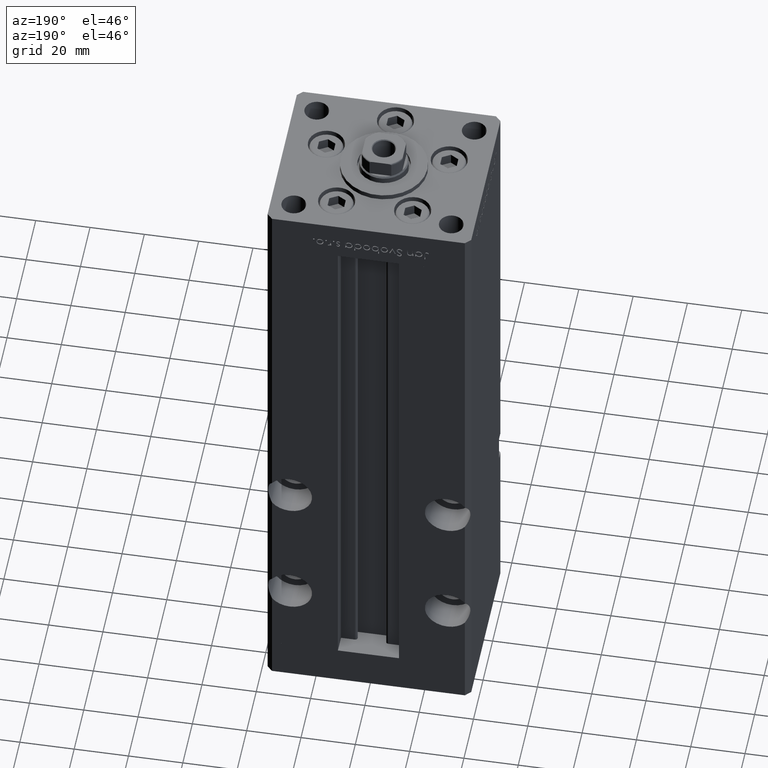
[diagram: clean part render]
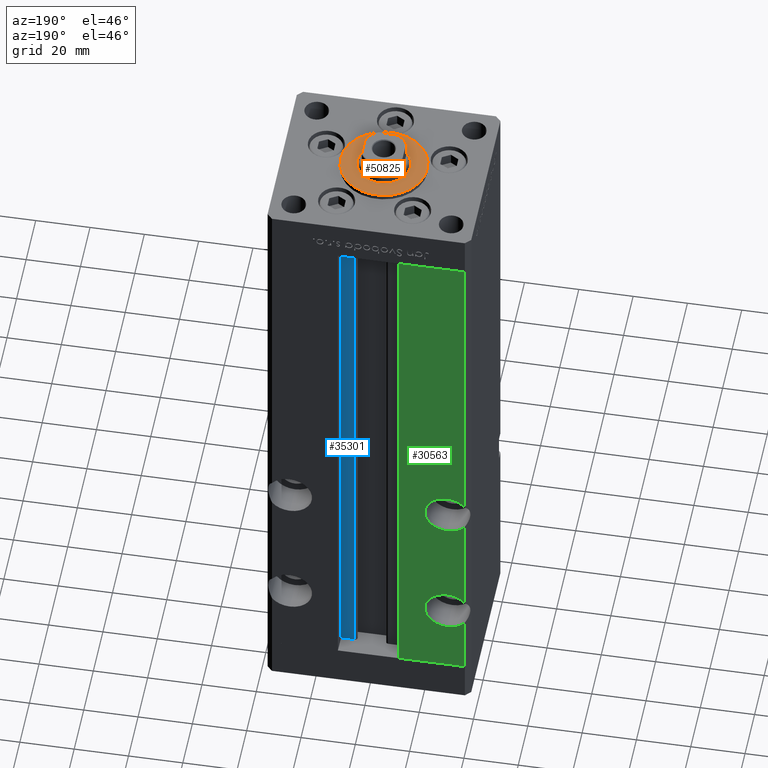
[diagram: same view with three faces highlighted in distinct colors, each labeled with its STEP entity id]
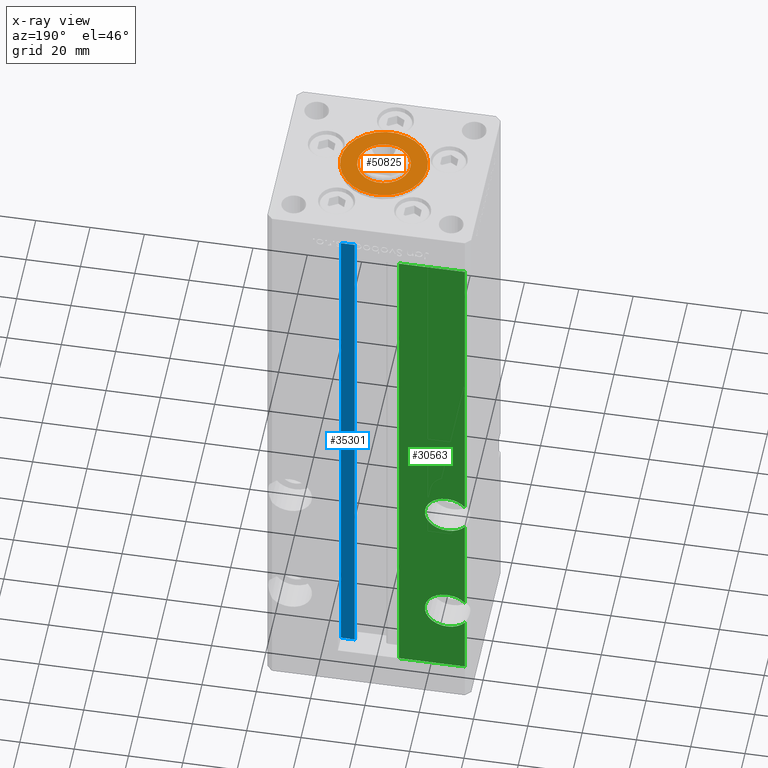
[diagram: x-ray of the same camera — body ghosted, the three highlighted faces saturated]
A machine part, auxiliary view with three faces highlighted in distinct colors.
The next image is the same camera in x-ray (body ghosted, the three faces saturated) — at least one of them is partly hidden behind the body in this view.
Their STEP definitions:

[orange] entity #50825 — the highlighted planar face has unit normal (0, 0, 1).
#788 = CARTESIAN_POINT ( 'NONE',  ( 0.000000000000000000, -6.938893903907228378E-15, 2.000000000000000000 ) ) ;
#1514 = DIRECTION ( 'NONE',  ( 0.000000000000000000, 0.000000000000000000, 1.000000000000000000 ) ) ;
#5014 = VERTEX_POINT ( 'NONE', #39158 ) ;
#5298 = DIRECTION ( 'NONE',  ( 0.000000000000000000, 0.000000000000000000, 1.000000000000000000 ) ) ;
#7110 = CARTESIAN_POINT ( 'NONE',  ( 0.000000000000000000, -6.938893903907228378E-15, 2.000000000000000000 ) ) ;
#7138 = ORIENTED_EDGE ( 'NONE', *, *, #46514, .F. ) ;
#8762 = EDGE_LOOP ( 'NONE', ( #42234, #28845 ) ) ;
#14092 = EDGE_CURVE ( 'NONE', #5014, #24597, #35419, .T. ) ;
#14274 = AXIS2_PLACEMENT_3D ( 'NONE', #7110, #51228, #23538 ) ;
#16167 = ORIENTED_EDGE ( 'NONE', *, *, #14092, .F. ) ;
#16566 = EDGE_LOOP ( 'NONE', ( #7138, #16167 ) ) ;
#16858 = CIRCLE ( 'NONE', #46914, 16.00000000000000355 ) ;
#18194 = DIRECTION ( 'NONE',  ( 1.000000000000000000, 0.000000000000000000, 0.000000000000000000 ) ) ;
#18458 = CIRCLE ( 'NONE', #51097, 9.750000000000001776 ) ;
#19836 = CARTESIAN_POINT ( 'NONE',  ( 16.00000000000000355, -4.979459025271462852E-15, 2.000000000000000000 ) ) ;
#21128 = VERTEX_POINT ( 'NONE', #19836 ) ;
#21781 = CIRCLE ( 'NONE', #51832, 16.00000000000000355 ) ;
#23538 = DIRECTION ( 'NONE',  ( 1.000000000000000000, 0.000000000000000000, -0.000000000000000000 ) ) ;
#24597 = VERTEX_POINT ( 'NONE', #27430 ) ;
#26487 = EDGE_CURVE ( 'NONE', #21128, #35937, #16858, .T. ) ;
#26766 = PLANE ( 'NONE',  #14274 ) ;
#27430 = CARTESIAN_POINT ( 'NONE',  ( 9.750000000000001776, -6.938893903907228378E-15, 2.000000000000000000 ) ) ;
#28845 = ORIENTED_EDGE ( 'NONE', *, *, #26487, .T. ) ;
#29808 = CARTESIAN_POINT ( 'NONE',  ( 0.000000000000000000, -6.938893903907228378E-15, 2.000000000000000000 ) ) ;
#31849 = CARTESIAN_POINT ( 'NONE',  ( 0.000000000000000000, -6.938893903907228378E-15, 2.000000000000000000 ) ) ;
#33529 = DIRECTION ( 'NONE',  ( 1.000000000000000000, 0.000000000000000000, 0.000000000000000000 ) ) ;
#33566 = DIRECTION ( 'NONE',  ( 0.000000000000000000, 0.000000000000000000, 1.000000000000000000 ) ) ;
#35419 = CIRCLE ( 'NONE', #36274, 9.750000000000001776 ) ;
#35937 = VERTEX_POINT ( 'NONE', #43559 ) ;
#36274 = AXIS2_PLACEMENT_3D ( 'NONE', #29808, #33566, #45666 ) ;
#38369 = CARTESIAN_POINT ( 'NONE',  ( 0.000000000000000000, -6.938893903907228378E-15, 2.000000000000000000 ) ) ;
#39158 = CARTESIAN_POINT ( 'NONE',  ( -9.750000000000001776, -5.744863274738558317E-15, 2.000000000000000000 ) ) ;
#39948 = FACE_OUTER_BOUND ( 'NONE', #8762, .T. ) ;
#42234 = ORIENTED_EDGE ( 'NONE', *, *, #43165, .T. ) ;
#43165 = EDGE_CURVE ( 'NONE', #35937, #21128, #21781, .T. ) ;
#43559 = CARTESIAN_POINT ( 'NONE',  ( -16.00000000000000355, -6.938893903907228378E-15, 2.000000000000000000 ) ) ;
#43961 = FACE_BOUND ( 'NONE', #16566, .T. ) ;
#45666 = DIRECTION ( 'NONE',  ( 1.000000000000000000, 0.000000000000000000, 0.000000000000000000 ) ) ;
#46514 = EDGE_CURVE ( 'NONE', #24597, #5014, #18458, .T. ) ;
#46750 = DIRECTION ( 'NONE',  ( 1.000000000000000000, 0.000000000000000000, 0.000000000000000000 ) ) ;
#46914 = AXIS2_PLACEMENT_3D ( 'NONE', #788, #50006, #46750 ) ;
#50006 = DIRECTION ( 'NONE',  ( 0.000000000000000000, 0.000000000000000000, 1.000000000000000000 ) ) ;
#50825 = ADVANCED_FACE ( 'NONE', ( #43961, #39948 ), #26766, .T. ) ;
#51097 = AXIS2_PLACEMENT_3D ( 'NONE', #31849, #5298, #18194 ) ;
#51228 = DIRECTION ( 'NONE',  ( 0.000000000000000000, 0.000000000000000000, 1.000000000000000000 ) ) ;
#51832 = AXIS2_PLACEMENT_3D ( 'NONE', #38369, #1514, #33529 ) ;

[blue] entity #35301 — the highlighted planar face has unit normal (0, -1, 0).
#734 = ORIENTED_EDGE ( 'NONE', *, *, #2385, .F. ) ;
#1170 = DIRECTION ( 'NONE',  ( 1.000000000000000000, 0.000000000000000000, 0.000000000000000000 ) ) ;
#1833 = PLANE ( 'NONE',  #33337 ) ;
#2385 = EDGE_CURVE ( 'NONE', #11922, #38791, #30209, .T. ) ;
#3482 = ORIENTED_EDGE ( 'NONE', *, *, #45780, .F. ) ;
#7424 = ORIENTED_EDGE ( 'NONE', *, *, #27838, .T. ) ;
#11922 = VERTEX_POINT ( 'NONE', #52797 ) ;
#15019 = VECTOR ( 'NONE', #16310, 1000.000000000000000 ) ;
#15773 = LINE ( 'NONE', #40527, #15019 ) ;
#16310 = DIRECTION ( 'NONE',  ( -1.000000000000000000, 0.000000000000000000, 0.000000000000000000 ) ) ;
#16983 = LINE ( 'NONE', #50061, #37531 ) ;
#18308 = CARTESIAN_POINT ( 'NONE',  ( 11.24999999999998046, 26.00000000000000000, 206.0000000000000000 ) ) ;
#18587 = CARTESIAN_POINT ( 'NONE',  ( 6.183333333333980164, 26.00000000000000000, 206.0000000000000000 ) ) ;
#20184 = CARTESIAN_POINT ( 'NONE',  ( 11.24999999999998046, 26.00000000000000000, 0.000000000000000000 ) ) ;
#21156 = CARTESIAN_POINT ( 'NONE',  ( 6.183333333333980164, 26.00000000000000000, 0.000000000000000000 ) ) ;
#21753 = DIRECTION ( 'NONE',  ( 0.000000000000000000, -0.000000000000000000, -1.000000000000000000 ) ) ;
#22542 = CARTESIAN_POINT ( 'NONE',  ( 6.183333333333980164, 26.00000000000000000, 0.000000000000000000 ) ) ;
#24936 = LINE ( 'NONE', #21156, #46836 ) ;
#25199 = DIRECTION ( 'NONE',  ( -0.000000000000000000, -0.000000000000000000, 1.000000000000000000 ) ) ;
#27441 = VERTEX_POINT ( 'NONE', #18587 ) ;
#27838 = EDGE_CURVE ( 'NONE', #11922, #27441, #24936, .T. ) ;
#29107 = ORIENTED_EDGE ( 'NONE', *, *, #31174, .F. ) ;
#29511 = VERTEX_POINT ( 'NONE', #18308 ) ;
#30209 = LINE ( 'NONE', #38555, #48280 ) ;
#31174 = EDGE_CURVE ( 'NONE', #38791, #29511, #16983, .T. ) ;
#33337 = AXIS2_PLACEMENT_3D ( 'NONE', #22542, #38432, #21753 ) ;
#35301 = ADVANCED_FACE ( 'NONE', ( #46225 ), #1833, .F. ) ;
#37531 = VECTOR ( 'NONE', #49796, 1000.000000000000000 ) ;
#38432 = DIRECTION ( 'NONE',  ( 0.000000000000000000, -1.000000000000000000, 0.000000000000000000 ) ) ;
#38555 = CARTESIAN_POINT ( 'NONE',  ( 6.183333333333980164, 26.00000000000000000, 0.000000000000000000 ) ) ;
#38791 = VERTEX_POINT ( 'NONE', #20184 ) ;
#40527 = CARTESIAN_POINT ( 'NONE',  ( 0.000000000000000000, 26.00000000000000000, 206.0000000000000000 ) ) ;
#45780 = EDGE_CURVE ( 'NONE', #29511, #27441, #15773, .T. ) ;
#46225 = FACE_OUTER_BOUND ( 'NONE', #47715, .T. ) ;
#46836 = VECTOR ( 'NONE', #25199, 1000.000000000000000 ) ;
#47715 = EDGE_LOOP ( 'NONE', ( #29107, #734, #7424, #3482 ) ) ;
#48280 = VECTOR ( 'NONE', #1170, 1000.000000000000000 ) ;
#49796 = DIRECTION ( 'NONE',  ( -0.000000000000000000, -0.000000000000000000, 1.000000000000000000 ) ) ;
#50061 = CARTESIAN_POINT ( 'NONE',  ( 11.24999999999998046, 26.00000000000000000, 0.000000000000000000 ) ) ;
#52797 = CARTESIAN_POINT ( 'NONE',  ( 6.183333333333980164, 26.00000000000000000, 0.000000000000000000 ) ) ;

[green] entity #30563 — the highlighted planar face has unit normal (0, -1, 0).
#199 = ORIENTED_EDGE ( 'NONE', *, *, #52349, .F. ) ;
#1455 = CARTESIAN_POINT ( 'NONE',  ( -35.50000000000000711, 32.50000000000000000, 206.0000000000000000 ) ) ;
#1852 = VECTOR ( 'NONE', #26216, 1000.000000000000000 ) ;
#2015 = EDGE_CURVE ( 'NONE', #43283, #15745, #45706, .T. ) ;
#2799 = DIRECTION ( 'NONE',  ( 0.000000000000000000, 1.000000000000000000, 0.000000000000000000 ) ) ;
#3047 = AXIS2_PLACEMENT_3D ( 'NONE', #27286, #2799, #19469 ) ;
#3435 = CARTESIAN_POINT ( 'NONE',  ( -35.50000000000000711, 32.50000000000000000, 206.0000000000000000 ) ) ;
#3558 = VERTEX_POINT ( 'NONE', #10501 ) ;
#4352 = CARTESIAN_POINT ( 'NONE',  ( -35.50000000000000711, 32.50000000000000000, 206.0000000000000000 ) ) ;
#4959 = VERTEX_POINT ( 'NONE', #49158 ) ;
#5499 = CARTESIAN_POINT ( 'NONE',  ( -35.50000000000000711, 32.50000000000000000, 0.000000000000000000 ) ) ;
#6745 = EDGE_CURVE ( 'NONE', #8042, #40488, #13217, .T. ) ;
#8042 = VERTEX_POINT ( 'NONE', #28473 ) ;
#8058 = CARTESIAN_POINT ( 'NONE',  ( -28.99999999999999645, 32.50000000000000000, 69.74999999999997158 ) ) ;
#8722 = CARTESIAN_POINT ( 'NONE',  ( -28.99999999999999645, 32.50000000000000000, 27.99999999999998934 ) ) ;
#8984 = LINE ( 'NONE', #1455, #49425 ) ;
#9105 = DIRECTION ( 'NONE',  ( 0.000000000000000000, 0.000000000000000000, -1.000000000000000000 ) ) ;
#9171 = EDGE_CURVE ( 'NONE', #52620, #34498, #50741, .T. ) ;
#9293 = DIRECTION ( 'NONE',  ( 0.000000000000000000, -0.000000000000000000, -1.000000000000000000 ) ) ;
#10063 = CARTESIAN_POINT ( 'NONE',  ( -11.24999999999998046, 32.50000000000000000, 206.0000000000000000 ) ) ;
#10501 = CARTESIAN_POINT ( 'NONE',  ( -28.99999999999999645, 32.50000000000000000, 86.25000000000000000 ) ) ;
#10794 = CIRCLE ( 'NONE', #35729, 8.250000000000007105 ) ;
#10953 = ORIENTED_EDGE ( 'NONE', *, *, #31284, .T. ) ;
#11875 = CARTESIAN_POINT ( 'NONE',  ( -35.50000000000000711, 32.50000000000000000, 33.08060035822537515 ) ) ;
#13217 = LINE ( 'NONE', #4352, #17459 ) ;
#13289 = DIRECTION ( 'NONE',  ( -0.000000000000000000, -0.000000000000000000, -1.000000000000000000 ) ) ;
#13332 = FACE_OUTER_BOUND ( 'NONE', #26230, .T. ) ;
#13724 = EDGE_CURVE ( 'NONE', #52620, #36980, #47182, .T. ) ;
#13998 = ORIENTED_EDGE ( 'NONE', *, *, #27054, .F. ) ;
#14830 = CARTESIAN_POINT ( 'NONE',  ( -28.99999999999999645, 32.50000000000000000, 77.99999999999998579 ) ) ;
#15548 = EDGE_CURVE ( 'NONE', #49602, #43283, #39758, .T. ) ;
#15726 = DIRECTION ( 'NONE',  ( 0.000000000000000000, 0.000000000000000000, -1.000000000000000000 ) ) ;
#15745 = VERTEX_POINT ( 'NONE', #20514 ) ;
#15802 = CARTESIAN_POINT ( 'NONE',  ( -35.50000000000000711, 32.50000000000000000, 72.91939964177460354 ) ) ;
#17459 = VECTOR ( 'NONE', #29115, 1000.000000000000000 ) ;
#17582 = DIRECTION ( 'NONE',  ( 0.000000000000000000, 0.000000000000000000, 1.000000000000000000 ) ) ;
#17850 = EDGE_CURVE ( 'NONE', #20805, #43087, #21782, .T. ) ;
#18026 = ORIENTED_EDGE ( 'NONE', *, *, #19081, .F. ) ;
#18080 = AXIS2_PLACEMENT_3D ( 'NONE', #26241, #30809, #50448 ) ;
#19081 = EDGE_CURVE ( 'NONE', #4959, #36980, #28204, .T. ) ;
#19469 = DIRECTION ( 'NONE',  ( 0.000000000000000000, 0.000000000000000000, 1.000000000000000000 ) ) ;
#20514 = CARTESIAN_POINT ( 'NONE',  ( -28.99999999999999645, 32.50000000000000000, 19.74999999999998934 ) ) ;
#20805 = VERTEX_POINT ( 'NONE', #8058 ) ;
#20914 = DIRECTION ( 'NONE',  ( -0.000000000000000000, -0.000000000000000000, 1.000000000000000000 ) ) ;
#21201 = VECTOR ( 'NONE', #51380, 1000.000000000000000 ) ;
#21406 = CARTESIAN_POINT ( 'NONE',  ( -35.50000000000000711, 32.50000000000000000, 83.08060035822536804 ) ) ;
#21671 = PLANE ( 'NONE',  #43495 ) ;
#21782 = CIRCLE ( 'NONE', #23517, 8.250000000000007105 ) ;
#23517 = AXIS2_PLACEMENT_3D ( 'NONE', #28651, #41019, #15726 ) ;
#23665 = CIRCLE ( 'NONE', #3047, 8.250000000000000000 ) ;
#23976 = DIRECTION ( 'NONE',  ( 0.000000000000000000, 1.000000000000000000, -0.000000000000000000 ) ) ;
#24428 = ORIENTED_EDGE ( 'NONE', *, *, #15548, .F. ) ;
#25972 = CARTESIAN_POINT ( 'NONE',  ( -11.24999999999998046, 32.50000000000000000, 206.0000000000000000 ) ) ;
#26019 = DIRECTION ( 'NONE',  ( -0.000000000000000000, -0.000000000000000000, -1.000000000000000000 ) ) ;
#26216 = DIRECTION ( 'NONE',  ( 1.000000000000000000, 0.000000000000000000, 0.000000000000000000 ) ) ;
#26230 = EDGE_LOOP ( 'NONE', ( #13998, #40309, #199, #27900, #43535, #34375, #18026, #10953, #31961, #50486, #31784, #24428 ) ) ;
#26241 = CARTESIAN_POINT ( 'NONE',  ( -28.99999999999999645, 32.50000000000000000, 27.99999999999998934 ) ) ;
#26930 = VECTOR ( 'NONE', #20914, 1000.000000000000000 ) ;
#26959 = CARTESIAN_POINT ( 'NONE',  ( -11.24999999999998046, 32.50000000000000000, 206.0000000000000000 ) ) ;
#27054 = EDGE_CURVE ( 'NONE', #43087, #49602, #8984, .T. ) ;
#27286 = CARTESIAN_POINT ( 'NONE',  ( -28.99999999999999645, 32.50000000000000000, 27.99999999999998934 ) ) ;
#27900 = ORIENTED_EDGE ( 'NONE', *, *, #47623, .F. ) ;
#28204 = LINE ( 'NONE', #49432, #26930 ) ;
#28473 = CARTESIAN_POINT ( 'NONE',  ( -35.50000000000000711, 32.50000000000000000, 22.91939964177461420 ) ) ;
#28651 = CARTESIAN_POINT ( 'NONE',  ( -28.99999999999999645, 32.50000000000000000, 77.99999999999998579 ) ) ;
#28965 = AXIS2_PLACEMENT_3D ( 'NONE', #29044, #45958, #9105 ) ;
#29044 = CARTESIAN_POINT ( 'NONE',  ( -28.99999999999999645, 32.50000000000000000, 77.99999999999998579 ) ) ;
#29115 = DIRECTION ( 'NONE',  ( -0.000000000000000000, -0.000000000000000000, -1.000000000000000000 ) ) ;
#29748 = DIRECTION ( 'NONE',  ( 0.000000000000000000, -1.000000000000000000, 0.000000000000000000 ) ) ;
#29970 = DIRECTION ( 'NONE',  ( 0.000000000000000000, 1.000000000000000000, 0.000000000000000000 ) ) ;
#30563 = ADVANCED_FACE ( 'NONE', ( #13332 ), #21671, .F. ) ;
#30809 = DIRECTION ( 'NONE',  ( 0.000000000000000000, 1.000000000000000000, 0.000000000000000000 ) ) ;
#31284 = EDGE_CURVE ( 'NONE', #4959, #40488, #47341, .T. ) ;
#31784 = ORIENTED_EDGE ( 'NONE', *, *, #2015, .F. ) ;
#31961 = ORIENTED_EDGE ( 'NONE', *, *, #6745, .F. ) ;
#34375 = ORIENTED_EDGE ( 'NONE', *, *, #13724, .T. ) ;
#34498 = VERTEX_POINT ( 'NONE', #21406 ) ;
#35256 = CARTESIAN_POINT ( 'NONE',  ( -11.24999999999998046, 32.50000000000000000, 0.000000000000000000 ) ) ;
#35729 = AXIS2_PLACEMENT_3D ( 'NONE', #14830, #23976, #51947 ) ;
#36980 = VERTEX_POINT ( 'NONE', #26959 ) ;
#39758 = CIRCLE ( 'NONE', #44046, 8.250000000000000000 ) ;
#40309 = ORIENTED_EDGE ( 'NONE', *, *, #17850, .F. ) ;
#40488 = VERTEX_POINT ( 'NONE', #5499 ) ;
#41019 = DIRECTION ( 'NONE',  ( 0.000000000000000000, 1.000000000000000000, -0.000000000000000000 ) ) ;
#43087 = VERTEX_POINT ( 'NONE', #15802 ) ;
#43283 = VERTEX_POINT ( 'NONE', #52319 ) ;
#43495 = AXIS2_PLACEMENT_3D ( 'NONE', #25972, #29748, #9293 ) ;
#43535 = ORIENTED_EDGE ( 'NONE', *, *, #9171, .F. ) ;
#44046 = AXIS2_PLACEMENT_3D ( 'NONE', #8722, #29970, #17582 ) ;
#45706 = CIRCLE ( 'NONE', #18080, 8.250000000000000000 ) ;
#45958 = DIRECTION ( 'NONE',  ( 0.000000000000000000, 1.000000000000000000, -0.000000000000000000 ) ) ;
#46704 = CARTESIAN_POINT ( 'NONE',  ( -35.50000000000000711, 32.50000000000000000, 206.0000000000000000 ) ) ;
#47182 = LINE ( 'NONE', #10063, #1852 ) ;
#47341 = LINE ( 'NONE', #35256, #21201 ) ;
#47358 = EDGE_CURVE ( 'NONE', #15745, #8042, #23665, .T. ) ;
#47623 = EDGE_CURVE ( 'NONE', #34498, #3558, #10794, .T. ) ;
#49158 = CARTESIAN_POINT ( 'NONE',  ( -11.24999999999998046, 32.50000000000000000, 0.000000000000000000 ) ) ;
#49425 = VECTOR ( 'NONE', #13289, 1000.000000000000000 ) ;
#49432 = CARTESIAN_POINT ( 'NONE',  ( -11.24999999999998046, 32.50000000000000000, 0.000000000000000000 ) ) ;
#49602 = VERTEX_POINT ( 'NONE', #11875 ) ;
#50448 = DIRECTION ( 'NONE',  ( 0.000000000000000000, 0.000000000000000000, 1.000000000000000000 ) ) ;
#50486 = ORIENTED_EDGE ( 'NONE', *, *, #47358, .F. ) ;
#50741 = LINE ( 'NONE', #46704, #52570 ) ;
#51380 = DIRECTION ( 'NONE',  ( -1.000000000000000000, 0.000000000000000000, 0.000000000000000000 ) ) ;
#51947 = DIRECTION ( 'NONE',  ( 0.000000000000000000, 0.000000000000000000, -1.000000000000000000 ) ) ;
#52147 = CIRCLE ( 'NONE', #28965, 8.250000000000007105 ) ;
#52319 = CARTESIAN_POINT ( 'NONE',  ( -28.99999999999999645, 32.50000000000000000, 36.24999999999999289 ) ) ;
#52349 = EDGE_CURVE ( 'NONE', #3558, #20805, #52147, .T. ) ;
#52570 = VECTOR ( 'NONE', #26019, 1000.000000000000000 ) ;
#52620 = VERTEX_POINT ( 'NONE', #3435 ) ;